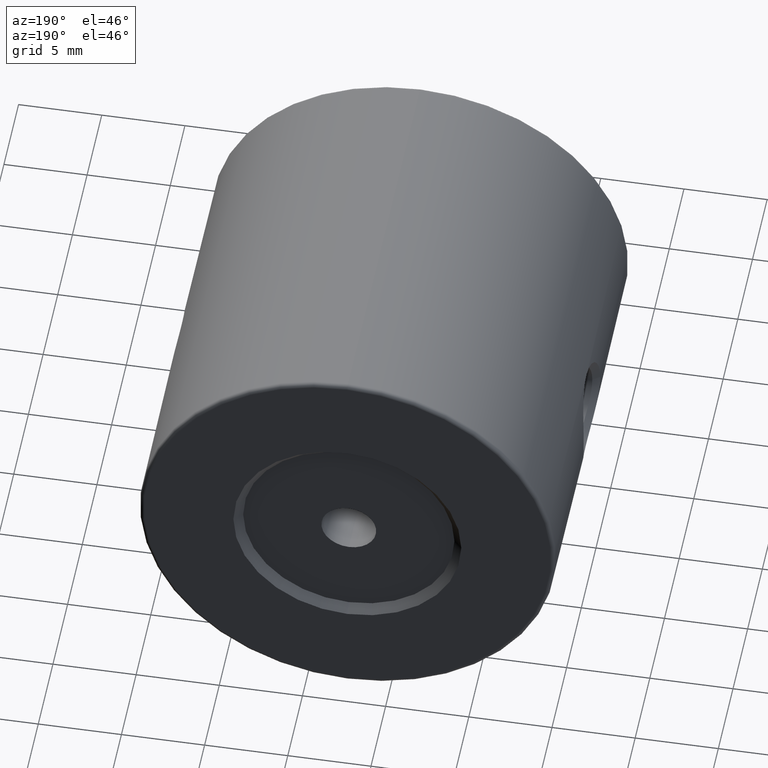
[diagram: clean part render]
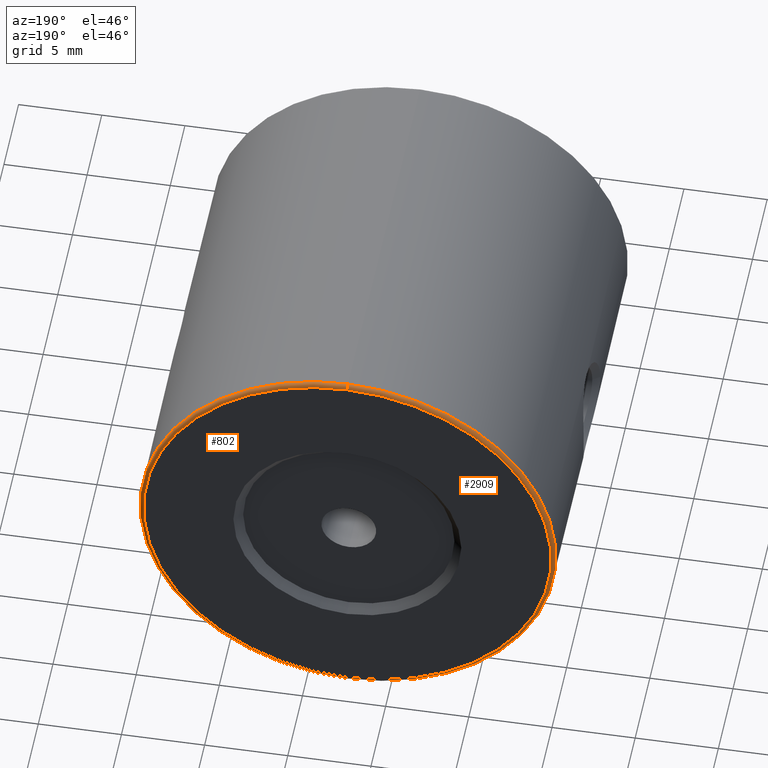
[diagram: same view with one multi-face feature highlighted, each face labeled with its STEP entity id]
A machine part, auxiliary view. The highlighted faces form ONE feature: a constant-radius fillet chain: 2 tangent blend faces with common blend radius 0.25 mm. The faces share edges in the B-rep.
Their STEP definitions:
[1] entity #802 (Torus):
#7 = DIRECTION ( 'NONE',  ( 0.0000000000000000000, 0.0000000000000000000, -1.000000000000000000 ) ) ;
#61 = ORIENTED_EDGE ( 'NONE', *, *, #3482, .T. ) ;
#279 = EDGE_CURVE ( 'NONE', #2336, #1970, #3224, .T. ) ;
#295 = CARTESIAN_POINT ( 'NONE',  ( -22.50520183104453409, 13.64825218476938851, 37.75000000000000711 ) ) ;
#497 = CIRCLE ( 'NONE', #2490, 0.2500000000000002220 ) ;
#558 = AXIS2_PLACEMENT_3D ( 'NONE', #2255, #3342, #910 ) ;
#587 = CARTESIAN_POINT ( 'NONE',  ( -22.50520183104453409, 13.89825218476938851, 37.75000000000000711 ) ) ;
#596 = EDGE_CURVE ( 'NONE', #2235, #3305, #1637, .T. ) ;
#671 = DIRECTION ( 'NONE',  ( 0.0000000000000000000, 1.000000000000000000, 0.0000000000000000000 ) ) ;
#741 = DIRECTION ( 'NONE',  ( 0.0000000000000000000, 0.0000000000000000000, 1.000000000000000000 ) ) ;
#749 = ORIENTED_EDGE ( 'NONE', *, *, #1487, .F. ) ;
#779 = AXIS2_PLACEMENT_3D ( 'NONE', #3178, #671, #741 ) ;
#802 = ADVANCED_FACE ( 'NONE', ( #1912 ), #2998, .T. ) ;
#872 = CARTESIAN_POINT ( 'NONE',  ( -22.50520183104453409, 13.64825218476938851, 50.00000000000000000 ) ) ;
#910 = DIRECTION ( 'NONE',  ( 0.0000000000000000000, 0.0000000000000000000, 1.000000000000000000 ) ) ;
#1347 = DIRECTION ( 'NONE',  ( -1.000000000000000000, 0.0000000000000000000, 0.0000000000000000000 ) ) ;
#1411 = CARTESIAN_POINT ( 'NONE',  ( -22.50520183104453409, 13.89825218476938851, 62.25000000000000000 ) ) ;
#1487 = EDGE_CURVE ( 'NONE', #1970, #2235, #497, .T. ) ;
#1637 = CIRCLE ( 'NONE', #779, 12.24999999999999645 ) ;
#1697 = AXIS2_PLACEMENT_3D ( 'NONE', #295, #2749, #7 ) ;
#1741 = CARTESIAN_POINT ( 'NONE',  ( -22.50520183104453409, 13.64825218476938851, 37.50000000000000711 ) ) ;
#1836 = DIRECTION ( 'NONE',  ( 0.0000000000000000000, 0.0000000000000000000, 1.000000000000000000 ) ) ;
#1912 = FACE_OUTER_BOUND ( 'NONE', #2575, .T. ) ;
#1930 = DIRECTION ( 'NONE',  ( 0.0000000000000000000, 1.000000000000000000, 0.0000000000000000000 ) ) ;
#1970 = VERTEX_POINT ( 'NONE', #3291 ) ;
#2235 = VERTEX_POINT ( 'NONE', #1411 ) ;
#2255 = CARTESIAN_POINT ( 'NONE',  ( -22.50520183104453409, 13.64825218476938851, 50.00000000000000000 ) ) ;
#2336 = VERTEX_POINT ( 'NONE', #1741 ) ;
#2490 = AXIS2_PLACEMENT_3D ( 'NONE', #3210, #1347, #1836 ) ;
#2575 = EDGE_LOOP ( 'NONE', ( #3100, #61, #3453, #749 ) ) ;
#2749 = DIRECTION ( 'NONE',  ( 1.000000000000000000, -0.0000000000000000000, 1.224646799147353207E-16 ) ) ;
#2798 = DIRECTION ( 'NONE',  ( 0.0000000000000000000, 0.0000000000000000000, 1.000000000000000000 ) ) ;
#2998 = TOROIDAL_SURFACE ( 'NONE', #3056, 12.25000000000000000, 0.2500000000000000000 ) ;
#3056 = AXIS2_PLACEMENT_3D ( 'NONE', #872, #1930, #2798 ) ;
#3100 = ORIENTED_EDGE ( 'NONE', *, *, #279, .F. ) ;
#3178 = CARTESIAN_POINT ( 'NONE',  ( -22.50520183104453409, 13.89825218476938851, 50.00000000000000000 ) ) ;
#3210 = CARTESIAN_POINT ( 'NONE',  ( -22.50520183104453409, 13.64825218476938851, 62.25000000000000000 ) ) ;
#3224 = CIRCLE ( 'NONE', #558, 12.49999999999999645 ) ;
#3280 = CIRCLE ( 'NONE', #1697, 0.2500000000000002220 ) ;
#3291 = CARTESIAN_POINT ( 'NONE',  ( -22.50520183104453409, 13.64825218476938851, 62.50000000000000000 ) ) ;
#3305 = VERTEX_POINT ( 'NONE', #587 ) ;
#3342 = DIRECTION ( 'NONE',  ( -0.0000000000000000000, -1.000000000000000000, -0.0000000000000000000 ) ) ;
#3453 = ORIENTED_EDGE ( 'NONE', *, *, #596, .F. ) ;
#3482 = EDGE_CURVE ( 'NONE', #2336, #3305, #3280, .T. ) ;
[2] entity #2909 (Torus):
#7 = DIRECTION ( 'NONE',  ( 0.0000000000000000000, 0.0000000000000000000, -1.000000000000000000 ) ) ;
#50 = ORIENTED_EDGE ( 'NONE', *, *, #3482, .F. ) ;
#295 = CARTESIAN_POINT ( 'NONE',  ( -22.50520183104453409, 13.64825218476938851, 37.75000000000000711 ) ) ;
#380 = CIRCLE ( 'NONE', #3449, 12.49999999999999645 ) ;
#497 = CIRCLE ( 'NONE', #2490, 0.2500000000000002220 ) ;
#577 = ORIENTED_EDGE ( 'NONE', *, *, #1487, .T. ) ;
#587 = CARTESIAN_POINT ( 'NONE',  ( -22.50520183104453409, 13.89825218476938851, 37.75000000000000711 ) ) ;
#748 = CARTESIAN_POINT ( 'NONE',  ( -22.50520183104453409, 13.64825218476938851, 50.00000000000000000 ) ) ;
#839 = CIRCLE ( 'NONE', #1355, 12.24999999999999645 ) ;
#843 = TOROIDAL_SURFACE ( 'NONE', #2029, 12.25000000000000000, 0.2500000000000000000 ) ;
#942 = CARTESIAN_POINT ( 'NONE',  ( -22.50520183104453409, 13.64825218476938851, 50.00000000000000000 ) ) ;
#1055 = ORIENTED_EDGE ( 'NONE', *, *, #1171, .F. ) ;
#1155 = DIRECTION ( 'NONE',  ( 0.0000000000000000000, 0.0000000000000000000, 1.000000000000000000 ) ) ;
#1171 = EDGE_CURVE ( 'NONE', #3305, #2235, #839, .T. ) ;
#1226 = EDGE_CURVE ( 'NONE', #1970, #2336, #380, .T. ) ;
#1272 = ORIENTED_EDGE ( 'NONE', *, *, #1226, .F. ) ;
#1347 = DIRECTION ( 'NONE',  ( -1.000000000000000000, 0.0000000000000000000, 0.0000000000000000000 ) ) ;
#1355 = AXIS2_PLACEMENT_3D ( 'NONE', #2171, #2527, #1155 ) ;
#1411 = CARTESIAN_POINT ( 'NONE',  ( -22.50520183104453409, 13.89825218476938851, 62.25000000000000000 ) ) ;
#1487 = EDGE_CURVE ( 'NONE', #1970, #2235, #497, .T. ) ;
#1697 = AXIS2_PLACEMENT_3D ( 'NONE', #295, #2749, #7 ) ;
#1741 = CARTESIAN_POINT ( 'NONE',  ( -22.50520183104453409, 13.64825218476938851, 37.50000000000000711 ) ) ;
#1836 = DIRECTION ( 'NONE',  ( 0.0000000000000000000, 0.0000000000000000000, 1.000000000000000000 ) ) ;
#1970 = VERTEX_POINT ( 'NONE', #3291 ) ;
#1995 = FACE_OUTER_BOUND ( 'NONE', #3205, .T. ) ;
#2029 = AXIS2_PLACEMENT_3D ( 'NONE', #748, #2678, #2404 ) ;
#2171 = CARTESIAN_POINT ( 'NONE',  ( -22.50520183104453409, 13.89825218476938851, 50.00000000000000000 ) ) ;
#2235 = VERTEX_POINT ( 'NONE', #1411 ) ;
#2336 = VERTEX_POINT ( 'NONE', #1741 ) ;
#2404 = DIRECTION ( 'NONE',  ( 0.0000000000000000000, 0.0000000000000000000, 1.000000000000000000 ) ) ;
#2490 = AXIS2_PLACEMENT_3D ( 'NONE', #3210, #1347, #1836 ) ;
#2527 = DIRECTION ( 'NONE',  ( 0.0000000000000000000, 1.000000000000000000, 0.0000000000000000000 ) ) ;
#2678 = DIRECTION ( 'NONE',  ( 0.0000000000000000000, 1.000000000000000000, 0.0000000000000000000 ) ) ;
#2749 = DIRECTION ( 'NONE',  ( 1.000000000000000000, -0.0000000000000000000, 1.224646799147353207E-16 ) ) ;
#2909 = ADVANCED_FACE ( 'NONE', ( #1995 ), #843, .T. ) ;
#3075 = DIRECTION ( 'NONE',  ( -0.0000000000000000000, -1.000000000000000000, -0.0000000000000000000 ) ) ;
#3205 = EDGE_LOOP ( 'NONE', ( #50, #1272, #577, #1055 ) ) ;
#3210 = CARTESIAN_POINT ( 'NONE',  ( -22.50520183104453409, 13.64825218476938851, 62.25000000000000000 ) ) ;
#3280 = CIRCLE ( 'NONE', #1697, 0.2500000000000002220 ) ;
#3291 = CARTESIAN_POINT ( 'NONE',  ( -22.50520183104453409, 13.64825218476938851, 62.50000000000000000 ) ) ;
#3305 = VERTEX_POINT ( 'NONE', #587 ) ;
#3324 = DIRECTION ( 'NONE',  ( 0.0000000000000000000, 0.0000000000000000000, 1.000000000000000000 ) ) ;
#3449 = AXIS2_PLACEMENT_3D ( 'NONE', #942, #3075, #3324 ) ;
#3482 = EDGE_CURVE ( 'NONE', #2336, #3305, #3280, .T. ) ;